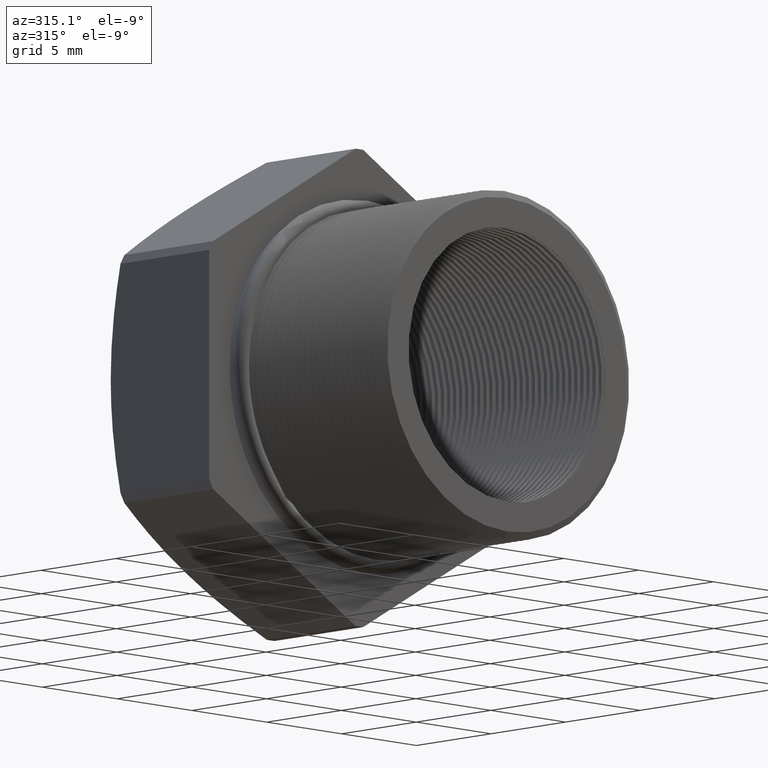
[diagram: clean part render]
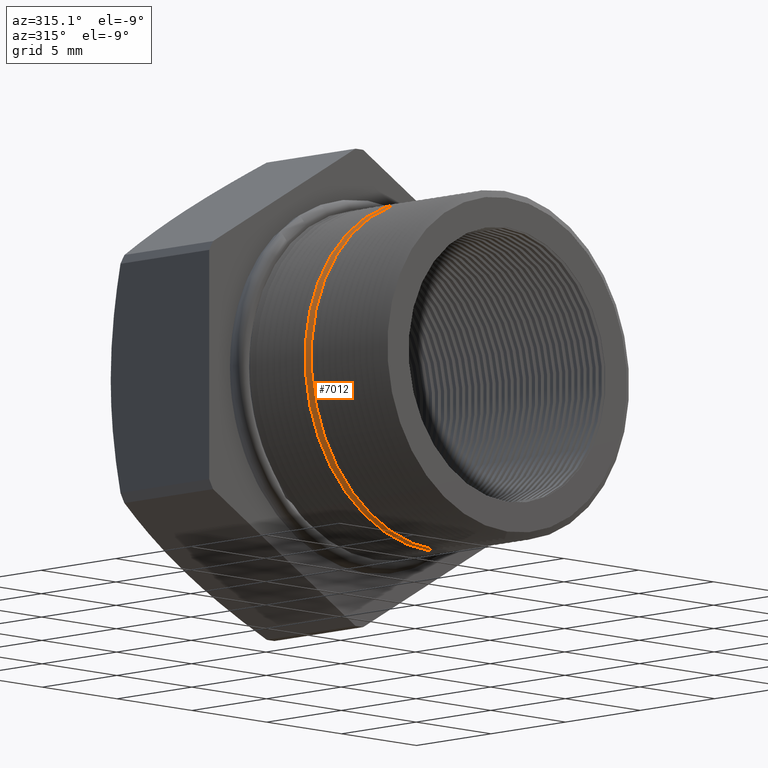
[diagram: same view with one face highlighted and labeled with its STEP entity id]
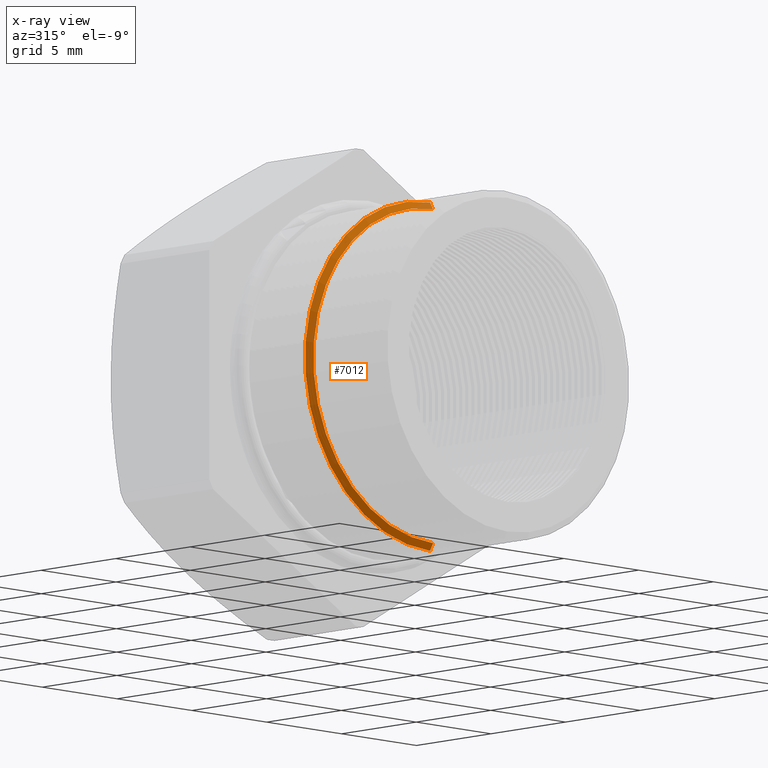
[diagram: x-ray of the same camera — body ghosted, the highlighted face saturated]
A machine part, auxiliary view. The second image highlights one B-rep face of the part: STEP entity #7012.
The next image is the same camera in x-ray: the body ghosted, the highlighted face saturated — about 2% of this face is hidden behind the body in this view.
In plain terms, the highlighted conical surface has half-angle 60 deg.
Its self-contained STEP definition (entity closure, byte-faithful):
#5724 = EDGE_CURVE ( 'NONE', #7017, #7018, #7272, .T. ) ;
#6987 = ORIENTED_EDGE ( 'NONE', *, *, #7001, .T. ) ;
#6988 = ORIENTED_EDGE ( 'NONE', *, *, #7019, .F. ) ;
#6992 = ORIENTED_EDGE ( 'NONE', *, *, #7004, .F. ) ;
#6997 = ORIENTED_EDGE ( 'NONE', *, *, #5724, .T. ) ;
#7000 = EDGE_LOOP ( 'NONE', ( #6988, #6997, #6987, #6992 ) ) ;
#7001 = EDGE_CURVE ( 'NONE', #7018, #7007, #9441, .T. ) ;
#7004 = EDGE_CURVE ( 'NONE', #7020, #7007, #9436, .T. ) ;
#7007 = VERTEX_POINT ( 'NONE', #9430 ) ;
#7012 = ADVANCED_FACE ( 'NONE', ( #9429 ), #9428, .T. ) ;
#7017 = VERTEX_POINT ( 'NONE', #9477 ) ;
#7018 = VERTEX_POINT ( 'NONE', #9476 ) ;
#7019 = EDGE_CURVE ( 'NONE', #7017, #7020, #9475, .T. ) ;
#7020 = VERTEX_POINT ( 'NONE', #9471 ) ;
#7264 = DIRECTION ( 'NONE',  ( 0.0000000000000000000, 0.0000000000000000000, 1.000000000000000000 ) ) ;
#7265 = DIRECTION ( 'NONE',  ( -0.0000000000000000000, 1.000000000000000000, -0.0000000000000000000 ) ) ;
#7266 = CARTESIAN_POINT ( 'NONE',  ( 0.0000000000000000000, -0.04709746364411296300, 0.0000000000000000000 ) ) ;
#7267 = AXIS2_PLACEMENT_3D ( 'NONE', #7266, #7265, #7264 ) ;
#7272 = CIRCLE ( 'NONE', #7267, 0.3150000000000000000 ) ;
#9428 = CONICAL_SURFACE ( 'NONE', #9491, 0.3287738815610546400, 1.047197551196597600 ) ;
#9429 = FACE_OUTER_BOUND ( 'NONE', #7000, .T. ) ;
#9430 = CARTESIAN_POINT ( 'NONE',  ( 4.026318816969966200E-017, -0.03914510941705203600, 0.3287738815610546400 ) ) ;
#9432 = DIRECTION ( 'NONE',  ( 0.0000000000000000000, 0.0000000000000000000, 1.000000000000000000 ) ) ;
#9433 = DIRECTION ( 'NONE',  ( -0.0000000000000000000, 1.000000000000000000, -0.0000000000000000000 ) ) ;
#9434 = CARTESIAN_POINT ( 'NONE',  ( 0.0000000000000000000, -0.03914510941705203600, 0.0000000000000000000 ) ) ;
#9435 = AXIS2_PLACEMENT_3D ( 'NONE', #9434, #9433, #9432 ) ;
#9436 = CIRCLE ( 'NONE', #9435, 0.3287738815610546400 ) ;
#9438 = DIRECTION ( 'NONE',  ( 0.0000000000000000000, 0.5000000000000001100, 0.8660254037844386000 ) ) ;
#9439 = VECTOR ( 'NONE', #9438, 39.37007874015748100 ) ;
#9440 = CARTESIAN_POINT ( 'NONE',  ( 0.0000000000000000000, -0.03914510941705203600, 0.3287738815610546400 ) ) ;
#9441 = LINE ( 'NONE', #9440, #9439 ) ;
#9471 = CARTESIAN_POINT ( 'NONE',  ( 0.0000000000000000000, -0.03914510941705203600, -0.3287738815610546400 ) ) ;
#9472 = DIRECTION ( 'NONE',  ( 1.060575238724906900E-016, 0.5000000000000001100, -0.8660254037844386000 ) ) ;
#9473 = VECTOR ( 'NONE', #9472, 39.37007874015748100 ) ;
#9474 = CARTESIAN_POINT ( 'NONE',  ( 4.026318816969965600E-017, -0.03914510941705203600, -0.3287738815610546400 ) ) ;
#9475 = LINE ( 'NONE', #9474, #9473 ) ;
#9476 = CARTESIAN_POINT ( 'NONE',  ( 3.857637417314162700E-017, -0.04709746364411296300, 0.3150000000000000000 ) ) ;
#9477 = CARTESIAN_POINT ( 'NONE',  ( 0.0000000000000000000, -0.04709746364411296300, -0.3150000000000000000 ) ) ;
#9488 = DIRECTION ( 'NONE',  ( 0.0000000000000000000, 0.0000000000000000000, 1.000000000000000000 ) ) ;
#9489 = DIRECTION ( 'NONE',  ( -0.0000000000000000000, 1.000000000000000000, -0.0000000000000000000 ) ) ;
#9490 = CARTESIAN_POINT ( 'NONE',  ( 0.0000000000000000000, -0.03914510941705203600, 0.0000000000000000000 ) ) ;
#9491 = AXIS2_PLACEMENT_3D ( 'NONE', #9490, #9489, #9488 ) ;